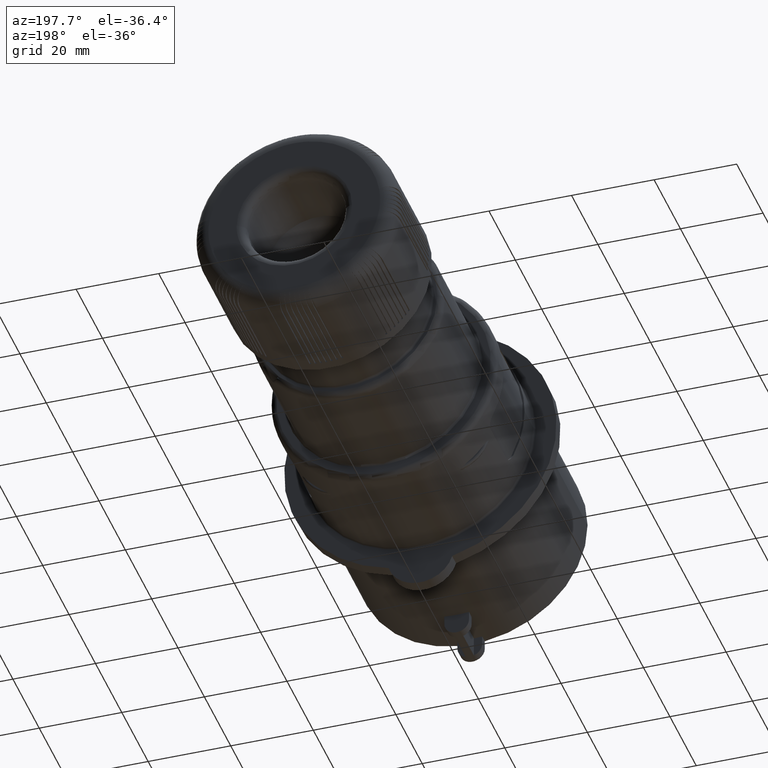
[diagram: clean part render]
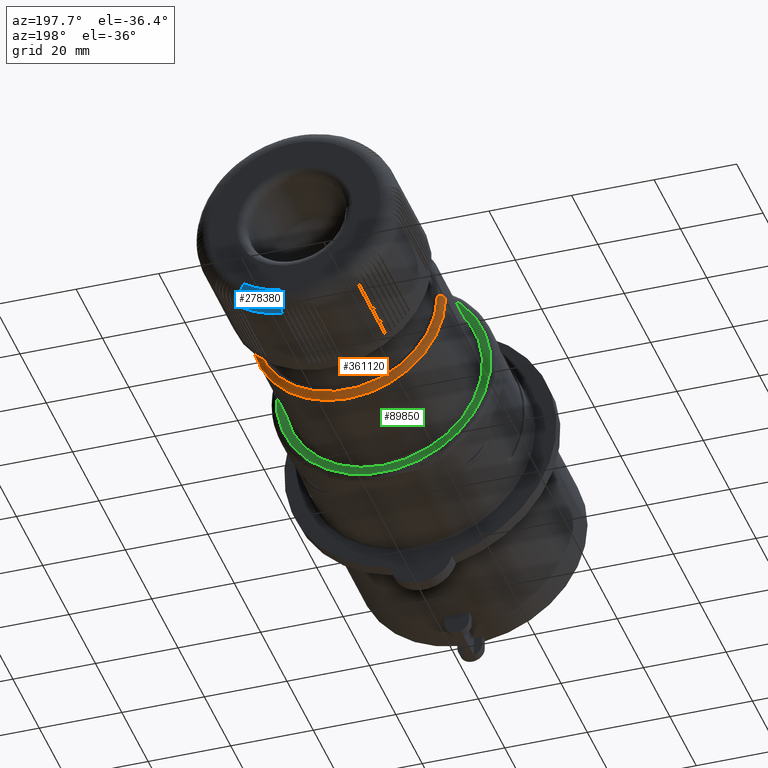
[diagram: same view with three faces highlighted in distinct colors, each labeled with its STEP entity id]
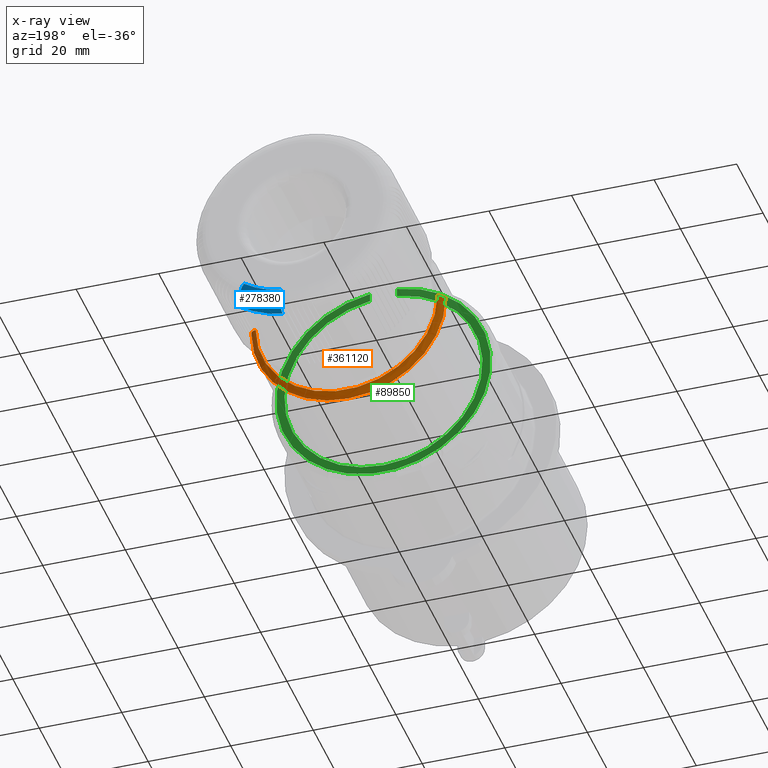
[diagram: x-ray of the same camera — body ghosted, the three highlighted faces saturated]
A machine part, auxiliary view with three faces highlighted in distinct colors.
The next image is the same camera in x-ray (body ghosted, the three faces saturated) — at least one of them is partly hidden behind the body in this view.
Their STEP definitions:

[orange] entity #361120 — the highlighted toroidal blend (fillet) surface has major radius 22 mm and minor (blend) radius 1.5 mm.
#8600=CARTESIAN_POINT('',(-223.5,-21.427747,0.));
#8610=VERTEX_POINT('',#8600);
#8640=CARTESIAN_POINT('',(-200.,-21.427747,0.));
#8650=DIRECTION('',(0.,-1.,0.));
#8660=DIRECTION('',(-1.,0.,0.));
#8670=AXIS2_PLACEMENT_3D('',#8640,#8650,#8660);
#8680=CIRCLE('',#8670,23.5);
#8690=CARTESIAN_POINT('',(-176.5,-21.427747,0.));
#8700=VERTEX_POINT('',#8690);
#114660=CARTESIAN_POINT('',(-200.,-19.927747,0.));
#114670=DIRECTION('',(0.,-1.,0.));
#114680=DIRECTION('',(-1.,0.,0.));
#114690=AXIS2_PLACEMENT_3D('',#114660,#114670,#114680);
#114700=CIRCLE('',#114690,22.);
#114710=CARTESIAN_POINT('',(-222.,-19.927747,0.));
#114720=VERTEX_POINT('',#114710);
#114730=CARTESIAN_POINT('',(-178.,-19.927747,0.));
#114740=VERTEX_POINT('',#114730);
#114750=EDGE_CURVE('',#114720,#114740,#114700,.T.);
#131130=CARTESIAN_POINT('',(-222.,-21.427747,0.));
#131140=DIRECTION('',(0.,0.,-1.));
#131150=DIRECTION('',(-1.,0.,0.));
#131160=AXIS2_PLACEMENT_3D('',#131130,#131140,#131150);
#131170=CIRCLE('',#131160,1.5);
#131180=EDGE_CURVE('',#8610,#114720,#131170,.T.);
#131210=CARTESIAN_POINT('',(-178.,-21.427747,0.));
#131220=DIRECTION('',(0.,0.,1.));
#131230=DIRECTION('',(1.,0.,0.));
#131240=AXIS2_PLACEMENT_3D('',#131210,#131220,#131230);
#131250=CIRCLE('',#131240,1.5);
#131260=EDGE_CURVE('',#8700,#114740,#131250,.T.);
#342190=EDGE_CURVE('',#8610,#8700,#8680,.T.);
#361010=CARTESIAN_POINT('',(-200.,-21.427747,0.));
#361020=DIRECTION('',(0.,-1.,0.));
#361030=DIRECTION('',(-1.,0.,0.));
#361040=AXIS2_PLACEMENT_3D('',#361010,#361020,#361030);
#361050=TOROIDAL_SURFACE('',#361040,22.,1.5);
#361060=ORIENTED_EDGE('',*,*,#342190,.F.);
#361070=ORIENTED_EDGE('',*,*,#131260,.F.);
#361080=ORIENTED_EDGE('',*,*,#114750,.T.);
#361090=ORIENTED_EDGE('',*,*,#131180,.T.);
#361100=EDGE_LOOP('',(#361090,#361080,#361070,#361060));
#361110=FACE_OUTER_BOUND('',#361100,.T.);
#361120=ADVANCED_FACE('',(#361110),#361050,.T.);

[blue] entity #278380 — the highlighted toroidal blend (fillet) surface has major radius 20.7491 mm and minor (blend) radius 4 mm.
#111050=CARTESIAN_POINT('',(-199.999999999999,15.772253609118,
6.28984033691047E-13));
#111060=DIRECTION('',(-3.37423673639642E-15,-1.,-2.94209101525666E-15));
#111070=DIRECTION('',(0.707106781186547,-3.05573169878671E-16,
-0.707106781186548));
#111080=AXIS2_PLACEMENT_3D('',#111050,#111060,#111070);
#111090=CIRCLE('',#111080,24.7490806411889);
#115810=CARTESIAN_POINT('',(-200.,15.772253609118,6.85827452551855E-13))
;
#115820=DIRECTION('',(-3.37423673639642E-15,-1.,-2.94209101525666E-15));
#115830=DIRECTION('',(-1.,3.38164839058091E-15,-7.60381550260158E-31));
#115840=AXIS2_PLACEMENT_3D('',#115810,#115820,#115830);
#115850=TOROIDAL_SURFACE('',#115840,20.7490806411889,4.);
#115860=CARTESIAN_POINT('',(-199.999999999999,19.772253609118,
6.97595816612881E-13));
#115870=DIRECTION('',(-3.37423673639642E-15,-1.,-2.94209101525666E-15));
#115880=DIRECTION('',(-2.22044604925016E-16,2.94209101525666E-15,-1.));
#115890=AXIS2_PLACEMENT_3D('',#115860,#115870,#115880);
#115900=CIRCLE('',#115890,20.7490806411889);
#159340=CARTESIAN_POINT('',(-196.754128669818,19.7722536091186,
-20.4936250273699));
#159350=VERTEX_POINT('',#159340);
#159380=CARTESIAN_POINT('',(-187.803996400481,19.7722536091186,
-16.7863588563773));
#159390=VERTEX_POINT('',#159380);
#159400=EDGE_CURVE('',#159350,#159390,#115900,.T.);
#276120=CARTESIAN_POINT('',(-185.622934523707,15.772253609118,
-20.1448996243332));
#276130=CARTESIAN_POINT('',(-185.622934523707,15.8373452254545,
-20.1448996243332));
#276140=CARTESIAN_POINT('',(-185.623801158574,15.9025857265556,
-20.143565123666));
#276150=CARTESIAN_POINT('',(-185.625543585957,15.9678647649754,
-20.1408820207866));
#276160=CARTESIAN_POINT('',(-185.627286007118,16.033143570276,
-20.1381989274888));
#276170=CARTESIAN_POINT('',(-185.629904244688,16.0984601021733,
-20.1341671951881));
#276180=CARTESIAN_POINT('',(-185.633401493571,16.1636978751131,
-20.1287819041621));
#276190=CARTESIAN_POINT('',(-185.636898734485,16.2289354993813,
-20.1233966254087));
#276200=CARTESIAN_POINT('',(-185.641274970296,16.2940935143405,
-20.1166578132101));
#276210=CARTESIAN_POINT('',(-185.646526914083,16.3590523181273,
-20.1085705289806));
#276220=CARTESIAN_POINT('',(-185.651778852251,16.4240110524116,
-20.1004832534042));
#276230=CARTESIAN_POINT('',(-185.657906442088,16.4887697086275,
-20.0910475925009));
#276240=CARTESIAN_POINT('',(-185.664899741173,16.5532084699715,
-20.0802788562593));
#276250=CARTESIAN_POINT('',(-185.671893040943,16.6176472376381,
-20.0695101189611));
#276260=CARTESIAN_POINT('',(-185.679751955148,16.681765248419,
-20.0574084523244));
#276270=CARTESIAN_POINT('',(-185.688460041126,16.7454452515292,
-20.0439991758247));
#276280=CARTESIAN_POINT('',(-185.697168138161,16.8091253355005,
-20.0305898822979));
#276290=CARTESIAN_POINT('',(-185.706725275937,16.8723665753674,
-20.0158731806833));
#276300=CARTESIAN_POINT('',(-185.717108991105,16.935056951276,
-19.9998836615022));
#276310=CARTESIAN_POINT('',(-185.727492732122,16.997747483251,
-19.9838941025155));
#276320=CARTESIAN_POINT('',(-185.738702886576,17.0598863612795,
-19.9666319784342));
#276330=CARTESIAN_POINT('',(-185.750711781149,17.1213693448331,
-19.9481399024266));
#276340=CARTESIAN_POINT('',(-185.762720981073,17.1828538917164,
-19.9296473562205));
#276350=CARTESIAN_POINT('',(-185.775527495824,17.2436761450738,
-19.9099270528456));
#276360=CARTESIAN_POINT('',(-185.789103208679,17.3037581508679,
-19.8890222882627));
#276370=CARTESIAN_POINT('',(-185.802685163387,17.3638677812218,
-19.8681079120679));
#276380=CARTESIAN_POINT('',(-185.817098271137,17.4235067797404,
-19.8459136724229));
#276390=CARTESIAN_POINT('',(-185.832328100586,17.4825672272852,
-19.82246179165));
#276400=CARTESIAN_POINT('',(-185.847557874768,17.5416274605077,
-19.7990099959807));
#276410=CARTESIAN_POINT('',(-185.86360422535,17.6001083810207,
-19.774300782922));
#276420=CARTESIAN_POINT('',(-185.880445948459,17.6579004634038,
-19.7483668035762));
#276430=CARTESIAN_POINT('',(-185.897287632242,17.7156924108391,
-19.7224328847877));
#276440=CARTESIAN_POINT('',(-185.914924497652,17.7727947493283,
-19.6952744936699));
#276450=CARTESIAN_POINT('',(-185.933328707902,17.8290995119449,
-19.66693449512));
#276460=CARTESIAN_POINT('',(-185.951732897422,17.8854042111422,
-19.638594528491));
#276470=CARTESIAN_POINT('',(-185.970904200489,17.9409105756473,
-19.6090733105873));
#276480=CARTESIAN_POINT('',(-185.990808580558,17.9955150065237,
-19.5784232530925));
#276490=CARTESIAN_POINT('',(-186.010712961406,18.0501194395367,
-19.5477731943984));
#276500=CARTESIAN_POINT('',(-186.031350153306,18.103821210895,
-19.5159947056395));
#276510=CARTESIAN_POINT('',(-186.052680630723,18.1565235554632,
-19.4831486508044));
#276520=CARTESIAN_POINT('',(-186.074011133857,18.2092259635734,
-19.4503025563674));
#276530=CARTESIAN_POINT('',(-186.096034628295,18.2609282650898,
-19.4163893489021));
#276540=CARTESIAN_POINT('',(-186.118707083791,18.3115426586622,
-19.3814768290389));
#276550=CARTESIAN_POINT('',(-186.1413795941,18.3621571745978,
-19.3465642247727));
#276560=CARTESIAN_POINT('',(-186.164700750322,18.4116831678232,
-19.3106527933908));
#276570=CARTESIAN_POINT('',(-186.188623280993,18.4600435907116,
-19.2738153265658));
#276580=CARTESIAN_POINT('',(-186.21254590698,18.5084042062869,
-19.2369777129659));
#276590=CARTESIAN_POINT('',(-186.23706955124,18.5555986643677,
-19.199214612385));
#276600=CARTESIAN_POINT('',(-186.262145338631,18.601562250605,
-19.1606012859415));
#276610=CARTESIAN_POINT('',(-186.287222659358,18.647528647427,
-19.1219855983674));
#276620=CARTESIAN_POINT('',(-186.312969203501,18.6924785041668,
-19.0823393971026));
#276630=CARTESIAN_POINT('',(-186.339349429558,18.7363226505156,
-19.0417174112595));
#276640=CARTESIAN_POINT('',(-186.365729558338,18.7801666351889,
-19.0010955752103));
#276650=CARTESIAN_POINT('',(-186.392743079366,18.8229043119076,
-18.9594984006298));
#276660=CARTESIAN_POINT('',(-186.420347856464,18.864449634239,
-18.9169907715425));
#276670=CARTESIAN_POINT('',(-186.447952567455,18.9059948570782,
-18.874483244252));
#276680=CARTESIAN_POINT('',(-186.476148200664,18.9463471507955,
-18.8310657765399));
#276690=CARTESIAN_POINT('',(-186.50488680273,18.9854264290673,
-18.7868122101105));
#276700=CARTESIAN_POINT('',(-186.533625370626,19.0245056608758,
-18.7425586962963));
#276710=CARTESIAN_POINT('',(-186.562906538526,19.0623113411309,
-18.6974696517481));
#276720=CARTESIAN_POINT('',(-186.592677509312,19.0987716461025,
-18.6516263768953));
#276730=CARTESIAN_POINT('',(-186.622448479245,19.1352319500281,
-18.6057831033577));
#276740=CARTESIAN_POINT('',(-186.652708857372,19.1703463944706,
-18.559186207287));
#276750=CARTESIAN_POINT('',(-186.683402159231,19.2040532094231,
-18.5119226671309));
#276760=CARTESIAN_POINT('',(-186.714095495769,19.2377600624592,
-18.4646590735743));
#276770=CARTESIAN_POINT('',(-186.745221344959,19.2700588652366,
-18.416729468937));
#276780=CARTESIAN_POINT('',(-186.776720871692,19.3008991923795,
-18.3682244513442));
#276790=CARTESIAN_POINT('',(-186.808220471838,19.331739591399,
-18.3197193207052));
#276800=CARTESIAN_POINT('',(-186.840093332208,19.3611211677291,
-18.2706394197247));
#276810=CARTESIAN_POINT('',(-186.872279788079,19.3890056248582,
-18.2210766240198));
#276820=CARTESIAN_POINT('',(-186.904466360315,19.4168901827997,
-18.1715136491274));
#276830=CARTESIAN_POINT('',(-186.936966115816,19.4432773574958,
-18.1214684142991));
#276840=CARTESIAN_POINT('',(-186.969720271876,19.468141230976,
-18.0710314369632));
#276850=CARTESIAN_POINT('',(-187.002459985343,19.4929941409988,
-18.0206166992698));
#276860=CARTESIAN_POINT('',(-187.035601325541,19.516437317204,
-17.9695835106451));
#276870=CARTESIAN_POINT('',(-187.069101199548,19.5384193234607,
-17.9179982283695));
#276880=CARTESIAN_POINT('',(-187.102600293834,19.5604008180788,
-17.8664141467587));
#276890=CARTESIAN_POINT('',(-187.136454742482,19.5809187585546,
-17.8142828674166));
#276900=CARTESIAN_POINT('',(-187.170608056536,19.5999231044942,
-17.7616913757071));
#276910=CARTESIAN_POINT('',(-187.204761286412,19.6189274035939,
-17.7091000136194));
#276920=CARTESIAN_POINT('',(-187.239212957718,19.6364178123219,
-17.6560490920317));
#276930=CARTESIAN_POINT('',(-187.273902397149,19.652353741404,
-17.6026320396373));
#276940=CARTESIAN_POINT('',(-187.3085917928,19.6682896503742,
-17.5492150546578));
#276950=CARTESIAN_POINT('',(-187.343518507883,19.6826708433563,
-17.4954326297976));
#276960=CARTESIAN_POINT('',(-187.378619053269,19.6954676479657,
-17.4413825297469));
#276970=CARTESIAN_POINT('',(-187.413719594875,19.708264451197,
-17.387332435517));
#276980=CARTESIAN_POINT('',(-187.448993504531,19.7194766950461,
-17.3330153779032));
#276990=CARTESIAN_POINT('',(-187.484375906896,19.7290864918782,
-17.278531256167));
#277000=CARTESIAN_POINT('',(-187.519758346139,19.7386962987267,
-17.2240470776415));
#277010=CARTESIAN_POINT('',(-187.555248813295,19.7467035568964,
-17.1693965507195));
#277020=CARTESIAN_POINT('',(-187.590782537209,19.7531024468773,
-17.1146794142305));
#277030=CARTESIAN_POINT('',(-187.626316340398,19.759501351134,
-17.0599621556674));
#277040=CARTESIAN_POINT('',(-187.661892944359,19.7642918572919,
-17.0051789896963));
#277050=CARTESIAN_POINT('',(-187.697449235582,19.7674799055718,
-16.9504271025998));
#277060=CARTESIAN_POINT('',(-187.733005651262,19.7706679650109,
-16.8956750238549));
#277070=CARTESIAN_POINT('',(-187.768541319233,19.772253609118,
-16.8409548937813));
#277080=CARTESIAN_POINT('',(-187.803996400481,19.772253609118,
-16.7863588563774));
#277090=B_SPLINE_CURVE_WITH_KNOTS('',3,(#276120,#276130,#276140,#276150,
#276160,#276170,#276180,#276190,#276200,#276210,#276220,#276230,#276240,
#276250,#276260,#276270,#276280,#276290,#276300,#276310,#276320,#276330,
#276340,#276350,#276360,#276370,#276380,#276390,#276400,#276410,#276420,
#276430,#276440,#276450,#276460,#276470,#276480,#276490,#276500,#276510,
#276520,#276530,#276540,#276550,#276560,#276570,#276580,#276590,#276600,
#276610,#276620,#276630,#276640,#276650,#276660,#276670,#276680,#276690,
#276700,#276710,#276720,#276730,#276740,#276750,#276760,#276770,#276780,
#276790,#276800,#276810,#276820,#276830,#276840,#276850,#276860,#276870,
#276880,#276890,#276900,#276910,#276920,#276930,#276940,#276950,#276960,
#276970,#276980,#276990,#277000,#277010,#277020,#277030,#277040,#277050,
#277060,#277070,#277080),.UNSPECIFIED.,.F.,.F.,(4,3,3,3,3,3,3,3,3,3,3,3,
3,3,3,3,3,3,3,3,3,3,3,3,3,3,3,3,3,3,3,3,4),(0.,0.195689357195016,
0.392072980299316,0.588928181053854,0.7860130922272,0.983076915450113,
1.17986960028013,1.37615157429724,1.57170744020589,1.76735767986396,
1.96371166294833,2.16054851051172,2.35762756191617,2.55469864029585,
2.75151171836747,2.94782660077557,3.14342327956697,3.33902959225975,
3.53535007014167,3.73216591852636,3.92923797638429,4.12631698281825,
4.32315321204269,4.51950608712797,4.71515438390799,4.91071084923295,
5.10699097805605,5.30378107577849,5.5008435279335,5.69793004803882,
5.89479128327091,6.09118635799516,6.28689296167252),.UNSPECIFIED.);
#277100=CARTESIAN_POINT('',(-185.622934523707,15.772253609118,
-20.1448996243332));
#277110=VERTEX_POINT('',#277100);
#277120=EDGE_CURVE('',#277110,#159390,#277090,.T.);
#277300=ORIENTED_EDGE('',*,*,#277120,.F.);
#277310=ORIENTED_EDGE('',*,*,#159400,.T.);
#277320=CARTESIAN_POINT('',(-195.92152536116,15.772253609118,
-24.4107156225371));
#277330=CARTESIAN_POINT('',(-195.92152536116,15.8373451316883,
-24.4107156225371));
#277340=CARTESIAN_POINT('',(-195.92185619128,15.9025855482711,
-24.4091591891905));
#277350=CARTESIAN_POINT('',(-195.922521347701,15.9678645135953,
-24.4060298742666));
#277360=CARTESIAN_POINT('',(-195.923186501746,16.0331432457743,
-24.402900570519));
#277370=CARTESIAN_POINT('',(-195.924185991214,16.0984597159869,
-24.3981983422745));
#277380=CARTESIAN_POINT('',(-195.925521036117,16.1636974400493,
-24.3919174498242));
#277390=CARTESIAN_POINT('',(-195.926856077978,16.2289350154161,
-24.3856365716898));
#277400=CARTESIAN_POINT('',(-195.928526669009,16.2940929942921,
-24.3777770588236));
#277410=CARTESIAN_POINT('',(-195.930531554869,16.3590517754315,
-24.3683448124412));
#277420=CARTESIAN_POINT('',(-195.932536438583,16.4240104870441,
-24.3589125761543));
#277430=CARTESIAN_POINT('',(-195.934875595633,16.4887691340278,
-24.3479077074654));
#277440=CARTESIAN_POINT('',(-195.937545230992,16.553207899487,
-24.335348060575));
#277450=CARTESIAN_POINT('',(-195.940214866611,16.6176466712453,
-24.322788412457));
#277460=CARTESIAN_POINT('',(-195.943214944347,16.6817646994634,
-24.3086741564098));
#277470=CARTESIAN_POINT('',(-195.946539187727,16.7454447325883,
-24.2930348209127));
#277480=CARTESIAN_POINT('',(-195.949863435327,16.8091248465514,
-24.2773954655624));
#277490=CARTESIAN_POINT('',(-195.953511798552,16.8723661289787,
-24.2602312660871));
#277500=CARTESIAN_POINT('',(-195.957475702517,16.9350565585943,
-24.24158256414));
#277510=CARTESIAN_POINT('',(-195.961439616349,16.997747144254,
-24.222933815774));
#277520=CARTESIAN_POINT('',(-195.965719008334,17.0598860870999,
-24.2028008593905));
#277530=CARTESIAN_POINT('',(-195.970303314632,17.1213691445422,
-24.1812333939538));
#277540=CARTESIAN_POINT('',(-195.974887736454,17.1828537513688,
-24.159665385013));
#277550=CARTESIAN_POINT('',(-195.979776533423,17.2436761331594,
-24.1366654035938));
#277560=CARTESIAN_POINT('',(-195.98495895788,17.303758164746,
-24.1122840134539));
#277570=CARTESIAN_POINT('',(-195.990143755351,17.3638677076813,
-24.0878914591622));
#277580=CARTESIAN_POINT('',(-195.995645838824,17.4235066289649,
-24.0620061915864));
#277590=CARTESIAN_POINT('',(-196.001459699715,17.4825670109249,
-24.0346541265889));
#277600=CARTESIAN_POINT('',(-196.007273539505,17.541627178539,
-24.0073021608594));
#277610=CARTESIAN_POINT('',(-196.013399101249,17.6001080451035,
-23.9784836586406));
#277620=CARTESIAN_POINT('',(-196.019828290998,17.6579000857988,
-23.9482366989714));
#277630=CARTESIAN_POINT('',(-196.026257465731,17.7156919915242,
-23.9179898099422));
#277640=CARTESIAN_POINT('',(-196.032990195597,17.7727943005716,
-23.8863148062933));
#277650=CARTESIAN_POINT('',(-196.040015854554,17.8290990458586,
-23.8532616796262));
#277660=CARTESIAN_POINT('',(-196.047041505595,17.8854037277046,
-23.8202085902014));
#277670=CARTESIAN_POINT('',(-196.054359997434,17.9409100869698,
-23.7857777931378));
#277680=CARTESIAN_POINT('',(-196.061958337266,17.9955145239037,
-23.7500304147816));
#277690=CARTESIAN_POINT('',(-196.069556677393,18.0501189629543,
-23.7142830350397));
#277700=CARTESIAN_POINT('',(-196.07743476399,18.1038207516424,
-23.6772195516318));
#277710=CARTESIAN_POINT('',(-196.085577508791,18.1565231234467,
-23.6389109492657));
#277720=CARTESIAN_POINT('',(-196.093720263407,18.2092255587733,
-23.600602300726));
#277730=CARTESIAN_POINT('',(-196.102127563915,18.2609278974028,
-23.5610490616172));
#277740=CARTESIAN_POINT('',(-196.110782602306,18.3115423361041,
-23.5203303074049));
#277750=CARTESIAN_POINT('',(-196.119437661617,18.3621568971474,
-23.4796114547697));
#277760=CARTESIAN_POINT('',(-196.128340338507,18.4116829434839,
-23.4377276530175));
#277770=CARTESIAN_POINT('',(-196.137472587521,18.460043425185,
-23.3947637993386));
#277780=CARTESIAN_POINT('',(-196.146604872692,18.5084040983578,
-23.3517997755546));
#277790=CARTESIAN_POINT('',(-196.155966595031,18.555598624713,
-23.3077563347624));
#277800=CARTESIAN_POINT('',(-196.165539093811,18.6015622731908,
-23.2627212687795));
#277810=CARTESIAN_POINT('',(-196.175112150846,18.6475286022068,
-23.2176835764121));
#277820=CARTESIAN_POINT('',(-196.184940679311,18.6924784007757,
-23.171443985464));
#277830=CARTESIAN_POINT('',(-196.195011112066,18.7363224991257,
-23.1240663243095));
#277840=CARTESIAN_POINT('',(-196.205081507682,18.7801664357815,
-23.0766888378807));
#277850=CARTESIAN_POINT('',(-196.215393697014,18.8229040746587,
-23.0281738014553));
#277860=CARTESIAN_POINT('',(-196.225931595385,18.8644493690633,
-22.9785968874892));
#277870=CARTESIAN_POINT('',(-196.236469468515,18.9059945639586,
-22.9290200922695));
#277880=CARTESIAN_POINT('',(-196.247232923243,18.9463468396471,
-22.8783820190759));
#277890=CARTESIAN_POINT('',(-196.258203654139,18.9854261088945,
-22.8267687881792));
#277900=CARTESIAN_POINT('',(-196.269174371987,19.0245053316636,
-22.7751556186679));
#277910=CARTESIAN_POINT('',(-196.280352225199,19.0623110118796,
-22.722567953888));
#277920=CARTESIAN_POINT('',(-196.291717059179,19.0987713243904,
-22.669100613756));
#277930=CARTESIAN_POINT('',(-196.303081892829,19.135231635842,
-22.6156332751773));
#277940=CARTESIAN_POINT('',(-196.314633556578,19.170346095382,
-22.5612869700898));
#277950=CARTESIAN_POINT('',(-196.326350488096,19.2040529311963,
-22.5061631412798));
#277960=CARTESIAN_POINT('',(-196.338067432848,19.2377598050817,
-22.4510392502089));
#277970=CARTESIAN_POINT('',(-196.349949488443,19.2700586344629,
-22.395138573693));
#277980=CARTESIAN_POINT('',(-196.361974195075,19.3008989918913,
-22.3385667768148));
#277990=CARTESIAN_POINT('',(-196.373998929727,19.3317394211843,
-22.2819948481121));
#278000=CARTESIAN_POINT('',(-196.386166156107,19.361121031457,
-22.2247525485371));
#278010=CARTESIAN_POINT('',(-196.398453097553,19.3890055239802,
-22.1669470338563));
#278020=CARTESIAN_POINT('',(-196.410740083415,19.4168901173041,
-22.109141310212));
#278030=CARTESIAN_POINT('',(-196.423146626974,19.4432773288182,
-22.0507731118307));
#278040=CARTESIAN_POINT('',(-196.435650288092,19.4681412383177,
-21.9919480112557));
#278050=CARTESIAN_POINT('',(-196.448148411717,19.4929941363429,
-21.9331489625404));
#278060=CARTESIAN_POINT('',(-196.460799832828,19.5164372647471,
-21.8736287058537));
#278070=CARTESIAN_POINT('',(-196.47358813511,19.5384192530609,
-21.8134644738872));
#278080=CARTESIAN_POINT('',(-196.486376136965,19.5604007249653,
-21.753301655322));
#278090=CARTESIAN_POINT('',(-196.499299794439,19.5809186499786,
-21.6925006272432));
#278100=CARTESIAN_POINT('',(-196.512337543744,19.5999229866113,
-21.6311628393031));
#278110=CARTESIAN_POINT('',(-196.52537526091,19.6189272763966,
-21.5698252025658));
#278120=CARTESIAN_POINT('',(-196.538526908059,19.6364176819602,
-21.5079515673982));
#278130=CARTESIAN_POINT('',(-196.55176932393,19.6523536124867,
-21.4456508989719));
#278140=CARTESIAN_POINT('',(-196.565011723083,19.6682895228955,
-21.3833503091951));
#278150=CARTESIAN_POINT('',(-196.578344719675,19.6826707219179,
-21.3206234919851));
#278160=CARTESIAN_POINT('',(-196.591744077386,19.6954675353375,
-21.2575844702471));
#278170=CARTESIAN_POINT('',(-196.60514343365,19.7082643473744,
-21.1945454553208));
#278180=CARTESIAN_POINT('',(-196.618608974573,19.7194766027907,
-21.1311950660501));
#278190=CARTESIAN_POINT('',(-196.632115934527,19.7290864119744,
-21.0676498155622));
#278200=CARTESIAN_POINT('',(-196.645622908554,19.7386962311709,
-21.0041044988641));
#278210=CARTESIAN_POINT('',(-196.659171124179,19.7467035024637,
-20.9403651557081));
#278220=CARTESIAN_POINT('',(-196.672735855397,19.7531024043633,
-20.8765481127913));
#278230=CARTESIAN_POINT('',(-196.686300616873,19.7595013205365,
-20.8127309275219));
#278240=CARTESIAN_POINT('',(-196.699881719872,19.7642918373961,
-20.7488368614358));
#278250=CARTESIAN_POINT('',(-196.713455071028,19.7674798933287,
-20.6849792649017));
#278260=CARTESIAN_POINT('',(-196.727028469688,19.7706679604191,
-20.621121444874));
#278270=CARTESIAN_POINT('',(-196.740593950457,19.7722536091181,
-20.5573008755991));
#278280=CARTESIAN_POINT('',(-196.754128669818,19.7722536091181,
-20.4936250273699));
#278290=B_SPLINE_CURVE_WITH_KNOTS('',3,(#277320,#277330,#277340,#277350,
#277360,#277370,#277380,#277390,#277400,#277410,#277420,#277430,#277440,
#277450,#277460,#277470,#277480,#277490,#277500,#277510,#277520,#277530,
#277540,#277550,#277560,#277570,#277580,#277590,#277600,#277610,#277620,
#277630,#277640,#277650,#277660,#277670,#277680,#277690,#277700,#277710,
#277720,#277730,#277740,#277750,#277760,#277770,#277780,#277790,#277800,
#277810,#277820,#277830,#277840,#277850,#277860,#277870,#277880,#277890,
#277900,#277910,#277920,#277930,#277940,#277950,#277960,#277970,#277980,
#277990,#278000,#278010,#278020,#278030,#278040,#278050,#278060,#278070,
#278080,#278090,#278100,#278110,#278120,#278130,#278140,#278150,#278160,
#278170,#278180,#278190,#278200,#278210,#278220,#278230,#278240,#278250,
#278260,#278270,#278280),.UNSPECIFIED.,.F.,.F.,(4,3,3,3,3,3,3,3,3,3,3,3,
3,3,3,3,3,3,3,3,3,3,3,3,3,3,3,3,3,3,3,3,4),(0.,0.195689105513209,
0.392072543133096,0.58892763241096,0.786012510527276,0.983076380401915,
1.17986918984068,1.37615136151586,1.57170745523088,1.76735744047801,
1.96371123468726,2.16054796692917,2.35762698117683,2.55469810205199,
2.75151130072713,2.94782637716571,3.14342331153544,3.33902936667133,
3.53534965183954,3.7321653805652,3.92923739661945,4.12631644078712,
4.32315278594781,4.51950585072783,4.71515440312335,4.91071064004345,
5.10699057161016,5.3037805446405,5.50084294964113,5.69792950198919,
5.89479084772102,6.09118610698353,6.28689296167243),.UNSPECIFIED.);
#278300=CARTESIAN_POINT('',(-195.92152536116,15.7722536091181,
-24.4107156225371));
#278310=VERTEX_POINT('',#278300);
#278320=EDGE_CURVE('',#278310,#159350,#278290,.T.);
#278330=ORIENTED_EDGE('',*,*,#278320,.T.);
#278340=EDGE_CURVE('',#278310,#277110,#111090,.T.);
#278350=ORIENTED_EDGE('',*,*,#278340,.F.);
#278360=EDGE_LOOP('',(#278350,#278330,#277310,#277300));
#278370=FACE_OUTER_BOUND('',#278360,.T.);
#278380=ADVANCED_FACE('',(#278370),#115850,.T.);

[green] entity #89850 — the highlighted planar face has unit normal (-0, -1, -0).
#7130=CARTESIAN_POINT('',(-196.745,-47.9277466954416,23.7782458352167));
#7140=VERTEX_POINT('',#7130);
#7170=CARTESIAN_POINT('',(-196.745,-47.9277466954416,0.));
#7180=DIRECTION('',(0.,0.,1.));
#7190=VECTOR('',#7180,1.);
#7200=LINE('',#7170,#7190);
#7210=CARTESIAN_POINT('',(-196.745,-47.9277466954416,25.795444849818));
#7220=VERTEX_POINT('',#7210);
#7230=EDGE_CURVE('',#7140,#7220,#7200,.T.);
#15790=CARTESIAN_POINT('',(-203.255,-47.9277466954416,25.795444849818));
#15800=VERTEX_POINT('',#15790);
#16180=CARTESIAN_POINT('',(-200.,-47.9277466954416,0.));
#16190=DIRECTION('',(0.,-1.,0.));
#16200=DIRECTION('',(-1.,0.,0.));
#16210=AXIS2_PLACEMENT_3D('',#16180,#16190,#16200);
#16220=CIRCLE('',#16210,26.);
#16230=EDGE_CURVE('',#15800,#7220,#16220,.T.);
#89610=CARTESIAN_POINT('',(-174.05,-47.9277466954416,0.));
#89620=DIRECTION('',(-0.,-1.,-0.));
#89630=DIRECTION('',(-1.,0.,0.));
#89640=AXIS2_PLACEMENT_3D('',#89610,#89620,#89630);
#89650=PLANE('',#89640);
#89660=ORIENTED_EDGE('',*,*,#7230,.T.);
#89670=CARTESIAN_POINT('',(-200.,-47.9277466954416,0.));
#89680=DIRECTION('',(0.,-1.,0.));
#89690=DIRECTION('',(-1.,0.,0.));
#89700=AXIS2_PLACEMENT_3D('',#89670,#89680,#89690);
#89710=CIRCLE('',#89700,24.);
#89720=CARTESIAN_POINT('',(-203.255,-47.9277466954416,23.7782458352167))
;
#89730=VERTEX_POINT('',#89720);
#89740=EDGE_CURVE('',#89730,#7140,#89710,.T.);
#89750=ORIENTED_EDGE('',*,*,#89740,.T.);
#89760=CARTESIAN_POINT('',(-203.255,-47.9277466954416,0.));
#89770=DIRECTION('',(0.,0.,1.));
#89780=VECTOR('',#89770,1.);
#89790=LINE('',#89760,#89780);
#89800=EDGE_CURVE('',#89730,#15800,#89790,.T.);
#89810=ORIENTED_EDGE('',*,*,#89800,.F.);
#89820=ORIENTED_EDGE('',*,*,#16230,.F.);
#89830=EDGE_LOOP('',(#89820,#89810,#89750,#89660));
#89840=FACE_OUTER_BOUND('',#89830,.T.);
#89850=ADVANCED_FACE('',(#89840),#89650,.F.);